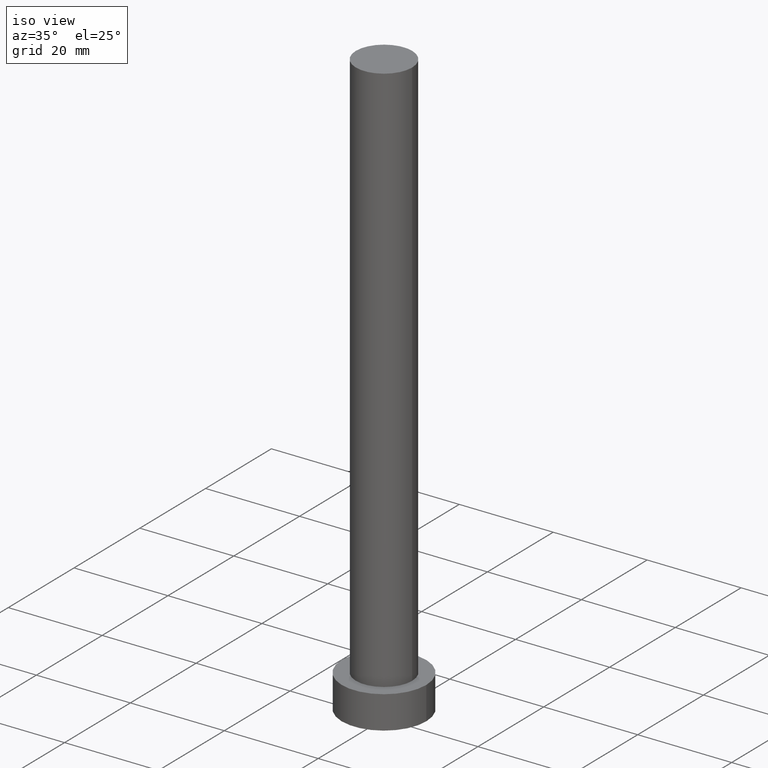
[diagram: clean part render]
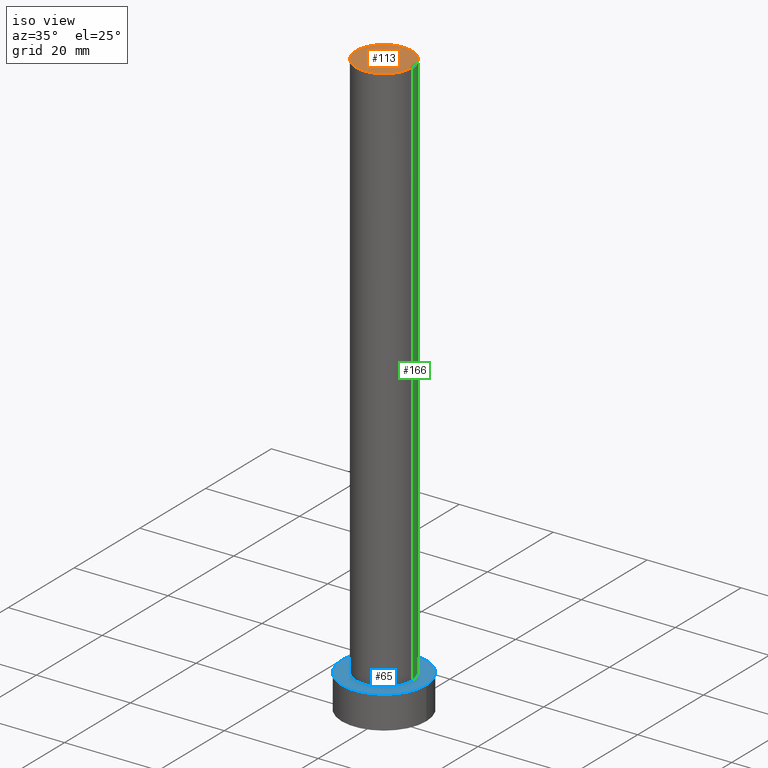
[diagram: same view with three faces highlighted in distinct colors, each labeled with its STEP entity id]
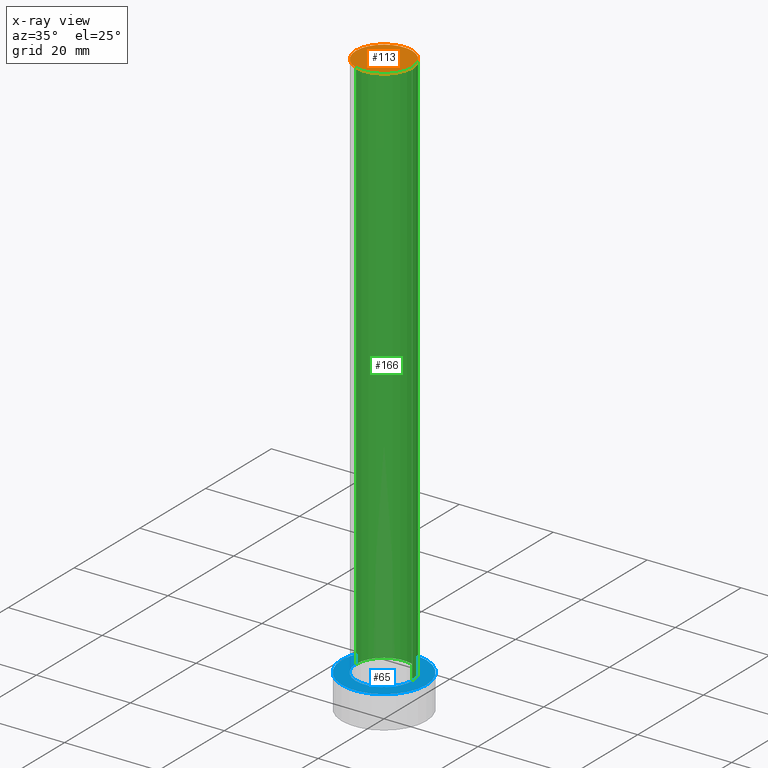
[diagram: x-ray of the same camera — body ghosted, the three highlighted faces saturated]
A machine part, iso view with three faces highlighted in distinct colors.
The next image is the same camera in x-ray (body ghosted, the three faces saturated) — at least one of them is partly hidden behind the body in this view.
Their STEP definitions:

[orange] entity #113 — the highlighted planar face has unit normal (0, 0, 1).
#3 = CARTESIAN_POINT ( 'NONE',  ( -6.000000000000000888, 0.000000000000000000, 125.0000000000000000 ) ) ;
#17 = VERTEX_POINT ( 'NONE', #248 ) ;
#32 = CIRCLE ( 'NONE', #223, 6.000000000000000888 ) ;
#41 = AXIS2_PLACEMENT_3D ( 'NONE', #199, #45, #146 ) ;
#45 = DIRECTION ( 'NONE',  ( 0.000000000000000000, 0.000000000000000000, 1.000000000000000000 ) ) ;
#66 = CARTESIAN_POINT ( 'NONE',  ( 0.000000000000000000, 0.000000000000000000, 125.0000000000000000 ) ) ;
#78 = ORIENTED_EDGE ( 'NONE', *, *, #231, .T. ) ;
#81 = CARTESIAN_POINT ( 'NONE',  ( 0.000000000000000000, 0.000000000000000000, 125.0000000000000000 ) ) ;
#99 = ORIENTED_EDGE ( 'NONE', *, *, #140, .T. ) ;
#113 = ADVANCED_FACE ( 'NONE', ( #174 ), #232, .T. ) ;
#114 = AXIS2_PLACEMENT_3D ( 'NONE', #66, #208, #255 ) ;
#115 = CIRCLE ( 'NONE', #41, 6.000000000000000888 ) ;
#125 = DIRECTION ( 'NONE',  ( 0.000000000000000000, 0.000000000000000000, 1.000000000000000000 ) ) ;
#140 = EDGE_CURVE ( 'NONE', #230, #17, #32, .T. ) ;
#146 = DIRECTION ( 'NONE',  ( 1.000000000000000000, 0.000000000000000000, 0.000000000000000000 ) ) ;
#170 = EDGE_LOOP ( 'NONE', ( #99, #78 ) ) ;
#174 = FACE_OUTER_BOUND ( 'NONE', #170, .T. ) ;
#195 = DIRECTION ( 'NONE',  ( 1.000000000000000000, 0.000000000000000000, 0.000000000000000000 ) ) ;
#199 = CARTESIAN_POINT ( 'NONE',  ( 0.000000000000000000, 0.000000000000000000, 125.0000000000000000 ) ) ;
#208 = DIRECTION ( 'NONE',  ( 0.000000000000000000, 0.000000000000000000, 1.000000000000000000 ) ) ;
#223 = AXIS2_PLACEMENT_3D ( 'NONE', #81, #125, #195 ) ;
#230 = VERTEX_POINT ( 'NONE', #3 ) ;
#231 = EDGE_CURVE ( 'NONE', #17, #230, #115, .T. ) ;
#232 = PLANE ( 'NONE',  #114 ) ;
#248 = CARTESIAN_POINT ( 'NONE',  ( 6.000000000000000888, 7.347880794884120722E-16, 125.0000000000000000 ) ) ;
#255 = DIRECTION ( 'NONE',  ( 1.000000000000000000, 0.000000000000000000, -0.000000000000000000 ) ) ;

[blue] entity #65 — the highlighted planar face has unit normal (0, 0, 1).
#14 = AXIS2_PLACEMENT_3D ( 'NONE', #198, #194, #84 ) ;
#18 = AXIS2_PLACEMENT_3D ( 'NONE', #210, #175, #82 ) ;
#20 = CARTESIAN_POINT ( 'NONE',  ( -9.000000000000000000, 0.000000000000000000, 7.000000000000000000 ) ) ;
#28 = DIRECTION ( 'NONE',  ( 1.000000000000000000, 0.000000000000000000, 0.000000000000000000 ) ) ;
#34 = ORIENTED_EDGE ( 'NONE', *, *, #222, .T. ) ;
#50 = DIRECTION ( 'NONE',  ( 0.000000000000000000, 0.000000000000000000, 1.000000000000000000 ) ) ;
#51 = EDGE_CURVE ( 'NONE', #59, #184, #215, .T. ) ;
#55 = ORIENTED_EDGE ( 'NONE', *, *, #100, .F. ) ;
#59 = VERTEX_POINT ( 'NONE', #102 ) ;
#65 = ADVANCED_FACE ( 'NONE', ( #196, #239 ), #124, .T. ) ;
#76 = EDGE_LOOP ( 'NONE', ( #228, #55 ) ) ;
#82 = DIRECTION ( 'NONE',  ( 1.000000000000000000, 0.000000000000000000, 0.000000000000000000 ) ) ;
#84 = DIRECTION ( 'NONE',  ( 1.000000000000000000, 0.000000000000000000, -0.000000000000000000 ) ) ;
#89 = DIRECTION ( 'NONE',  ( 1.000000000000000000, 0.000000000000000000, 0.000000000000000000 ) ) ;
#91 = CIRCLE ( 'NONE', #123, 9.000000000000000000 ) ;
#94 = VERTEX_POINT ( 'NONE', #20 ) ;
#100 = EDGE_CURVE ( 'NONE', #184, #59, #119, .T. ) ;
#102 = CARTESIAN_POINT ( 'NONE',  ( -6.000000000000000888, 0.000000000000000000, 7.000000000000000000 ) ) ;
#105 = CARTESIAN_POINT ( 'NONE',  ( 9.000000000000000000, 1.102182119232617714E-15, 7.000000000000000000 ) ) ;
#119 = CIRCLE ( 'NONE', #192, 6.000000000000000888 ) ;
#123 = AXIS2_PLACEMENT_3D ( 'NONE', #221, #50, #89 ) ;
#124 = PLANE ( 'NONE',  #14 ) ;
#138 = AXIS2_PLACEMENT_3D ( 'NONE', #245, #182, #28 ) ;
#139 = EDGE_LOOP ( 'NONE', ( #34, #141 ) ) ;
#141 = ORIENTED_EDGE ( 'NONE', *, *, #171, .T. ) ;
#142 = DIRECTION ( 'NONE',  ( 0.000000000000000000, 0.000000000000000000, 1.000000000000000000 ) ) ;
#168 = CIRCLE ( 'NONE', #138, 9.000000000000000000 ) ;
#171 = EDGE_CURVE ( 'NONE', #227, #94, #168, .T. ) ;
#175 = DIRECTION ( 'NONE',  ( 0.000000000000000000, 0.000000000000000000, 1.000000000000000000 ) ) ;
#181 = CARTESIAN_POINT ( 'NONE',  ( 6.000000000000000888, 7.347880794884120722E-16, 7.000000000000000000 ) ) ;
#182 = DIRECTION ( 'NONE',  ( 0.000000000000000000, 0.000000000000000000, 1.000000000000000000 ) ) ;
#184 = VERTEX_POINT ( 'NONE', #181 ) ;
#191 = CARTESIAN_POINT ( 'NONE',  ( 0.000000000000000000, 0.000000000000000000, 7.000000000000000000 ) ) ;
#192 = AXIS2_PLACEMENT_3D ( 'NONE', #191, #142, #237 ) ;
#194 = DIRECTION ( 'NONE',  ( 0.000000000000000000, 0.000000000000000000, 1.000000000000000000 ) ) ;
#196 = FACE_BOUND ( 'NONE', #76, .T. ) ;
#198 = CARTESIAN_POINT ( 'NONE',  ( 0.000000000000000000, 0.000000000000000000, 7.000000000000000000 ) ) ;
#210 = CARTESIAN_POINT ( 'NONE',  ( 0.000000000000000000, 0.000000000000000000, 7.000000000000000000 ) ) ;
#215 = CIRCLE ( 'NONE', #18, 6.000000000000000888 ) ;
#221 = CARTESIAN_POINT ( 'NONE',  ( 0.000000000000000000, 0.000000000000000000, 7.000000000000000000 ) ) ;
#222 = EDGE_CURVE ( 'NONE', #94, #227, #91, .T. ) ;
#227 = VERTEX_POINT ( 'NONE', #105 ) ;
#228 = ORIENTED_EDGE ( 'NONE', *, *, #51, .F. ) ;
#237 = DIRECTION ( 'NONE',  ( 1.000000000000000000, 0.000000000000000000, 0.000000000000000000 ) ) ;
#239 = FACE_OUTER_BOUND ( 'NONE', #139, .T. ) ;
#245 = CARTESIAN_POINT ( 'NONE',  ( 0.000000000000000000, 0.000000000000000000, 7.000000000000000000 ) ) ;

[green] entity #166 — the highlighted cylindrical surface (edge-blend (fillet) strip) has radius 6 mm, axis along (-0, -0, -1).
#3 = CARTESIAN_POINT ( 'NONE',  ( -6.000000000000000888, 0.000000000000000000, 125.0000000000000000 ) ) ;
#16 = EDGE_CURVE ( 'NONE', #230, #59, #137, .T. ) ;
#17 = VERTEX_POINT ( 'NONE', #248 ) ;
#19 = CARTESIAN_POINT ( 'NONE',  ( 6.000000000000000888, 7.347880794884120722E-16, 125.0000000000000000 ) ) ;
#22 = DIRECTION ( 'NONE',  ( -1.000000000000000000, 0.000000000000000000, 0.000000000000000000 ) ) ;
#39 = ORIENTED_EDGE ( 'NONE', *, *, #148, .T. ) ;
#41 = AXIS2_PLACEMENT_3D ( 'NONE', #199, #45, #146 ) ;
#43 = FACE_OUTER_BOUND ( 'NONE', #204, .T. ) ;
#45 = DIRECTION ( 'NONE',  ( 0.000000000000000000, 0.000000000000000000, 1.000000000000000000 ) ) ;
#59 = VERTEX_POINT ( 'NONE', #102 ) ;
#63 = CYLINDRICAL_SURFACE ( 'NONE', #97, 6.000000000000000888 ) ;
#86 = VECTOR ( 'NONE', #126, 1000.000000000000000 ) ;
#97 = AXIS2_PLACEMENT_3D ( 'NONE', #234, #214, #22 ) ;
#100 = EDGE_CURVE ( 'NONE', #184, #59, #119, .T. ) ;
#102 = CARTESIAN_POINT ( 'NONE',  ( -6.000000000000000888, 0.000000000000000000, 7.000000000000000000 ) ) ;
#115 = CIRCLE ( 'NONE', #41, 6.000000000000000888 ) ;
#119 = CIRCLE ( 'NONE', #192, 6.000000000000000888 ) ;
#120 = CARTESIAN_POINT ( 'NONE',  ( -6.000000000000000888, 0.000000000000000000, 125.0000000000000000 ) ) ;
#126 = DIRECTION ( 'NONE',  ( -0.000000000000000000, -0.000000000000000000, -1.000000000000000000 ) ) ;
#137 = LINE ( 'NONE', #120, #163 ) ;
#142 = DIRECTION ( 'NONE',  ( 0.000000000000000000, 0.000000000000000000, 1.000000000000000000 ) ) ;
#146 = DIRECTION ( 'NONE',  ( 1.000000000000000000, 0.000000000000000000, 0.000000000000000000 ) ) ;
#148 = EDGE_CURVE ( 'NONE', #17, #184, #159, .T. ) ;
#155 = DIRECTION ( 'NONE',  ( -0.000000000000000000, -0.000000000000000000, -1.000000000000000000 ) ) ;
#159 = LINE ( 'NONE', #19, #86 ) ;
#163 = VECTOR ( 'NONE', #155, 1000.000000000000000 ) ;
#166 = ADVANCED_FACE ( 'NONE', ( #43 ), #63, .T. ) ;
#172 = ORIENTED_EDGE ( 'NONE', *, *, #100, .T. ) ;
#181 = CARTESIAN_POINT ( 'NONE',  ( 6.000000000000000888, 7.347880794884120722E-16, 7.000000000000000000 ) ) ;
#184 = VERTEX_POINT ( 'NONE', #181 ) ;
#191 = CARTESIAN_POINT ( 'NONE',  ( 0.000000000000000000, 0.000000000000000000, 7.000000000000000000 ) ) ;
#192 = AXIS2_PLACEMENT_3D ( 'NONE', #191, #142, #237 ) ;
#199 = CARTESIAN_POINT ( 'NONE',  ( 0.000000000000000000, 0.000000000000000000, 125.0000000000000000 ) ) ;
#204 = EDGE_LOOP ( 'NONE', ( #249, #39, #172, #253 ) ) ;
#214 = DIRECTION ( 'NONE',  ( -0.000000000000000000, -0.000000000000000000, -1.000000000000000000 ) ) ;
#230 = VERTEX_POINT ( 'NONE', #3 ) ;
#231 = EDGE_CURVE ( 'NONE', #17, #230, #115, .T. ) ;
#234 = CARTESIAN_POINT ( 'NONE',  ( 0.000000000000000000, 0.000000000000000000, 125.0000000000000000 ) ) ;
#237 = DIRECTION ( 'NONE',  ( 1.000000000000000000, 0.000000000000000000, 0.000000000000000000 ) ) ;
#248 = CARTESIAN_POINT ( 'NONE',  ( 6.000000000000000888, 7.347880794884120722E-16, 125.0000000000000000 ) ) ;
#249 = ORIENTED_EDGE ( 'NONE', *, *, #231, .F. ) ;
#253 = ORIENTED_EDGE ( 'NONE', *, *, #16, .F. ) ;